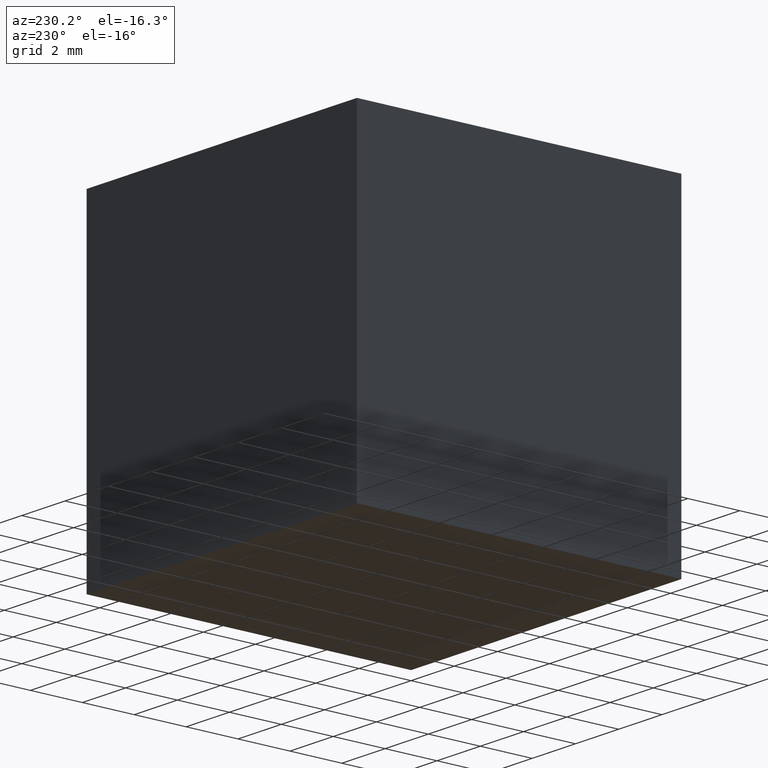
[diagram: clean part render]
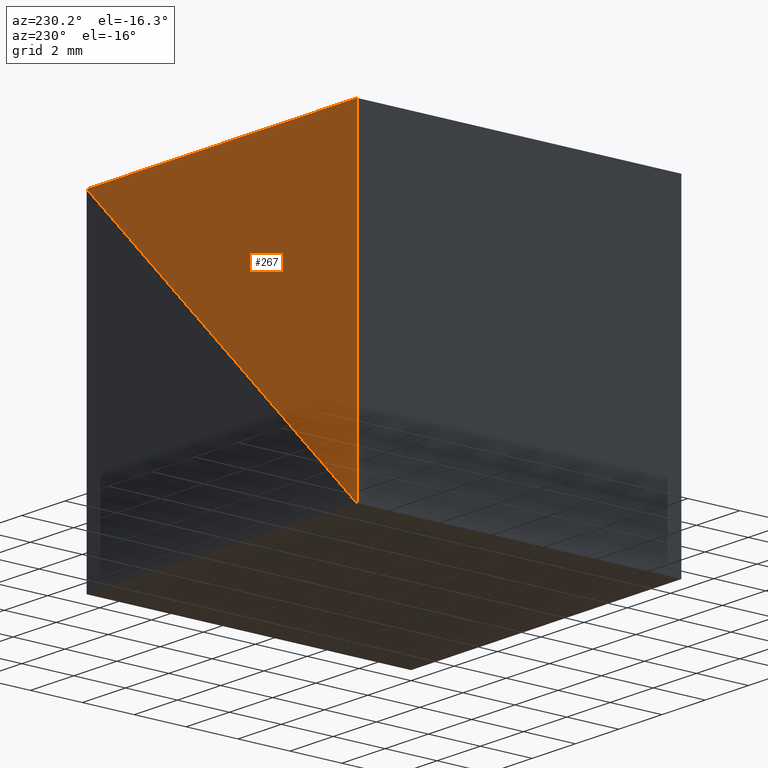
[diagram: same view with one face highlighted and labeled with its STEP entity id]
A machine part, auxiliary view. The second image highlights one B-rep face of the part: STEP entity #267.
In plain terms, the highlighted planar face has unit normal (0, 1, 0).
Its self-contained STEP definition (entity closure, byte-faithful):
#13 = VERTEX_POINT ( 'NONE', #244 ) ;
#28 = EDGE_CURVE ( 'NONE', #97, #13, #141, .T. ) ;
#59 = VECTOR ( 'NONE', #129, 1000.000000000000000 ) ;
#70 = VERTEX_POINT ( 'NONE', #243 ) ;
#76 = EDGE_LOOP ( 'NONE', ( #108, #113, #104 ) ) ;
#84 = CARTESIAN_POINT ( 'NONE',  ( -12.50000000000000000, 12.50000000000000000, -12.49999999999999800 ) ) ;
#86 = FACE_OUTER_BOUND ( 'NONE', #76, .T. ) ;
#89 = PLANE ( 'NONE',  #145 ) ;
#94 = CARTESIAN_POINT ( 'NONE',  ( -12.50000000000000000, 12.50000000000000000, -12.49999999999999800 ) ) ;
#95 = LINE ( 'NONE', #94, #147 ) ;
#97 = VERTEX_POINT ( 'NONE', #84 ) ;
#104 = ORIENTED_EDGE ( 'NONE', *, *, #293, .F. ) ;
#108 = ORIENTED_EDGE ( 'NONE', *, *, #28, .F. ) ;
#113 = ORIENTED_EDGE ( 'NONE', *, *, #206, .F. ) ;
#129 = DIRECTION ( 'NONE',  ( 0.7071067811865475700, 0.0000000000000000000, 0.7071067811865474600 ) ) ;
#138 = LINE ( 'NONE', #262, #146 ) ;
#141 = LINE ( 'NONE', #298, #59 ) ;
#143 = DIRECTION ( 'NONE',  ( -0.0000000000000000000, -0.0000000000000000000, -1.000000000000000000 ) ) ;
#145 = AXIS2_PLACEMENT_3D ( 'NONE', #216, #181, #155 ) ;
#146 = VECTOR ( 'NONE', #149, 1000.000000000000000 ) ;
#147 = VECTOR ( 'NONE', #143, 1000.000000000000000 ) ;
#149 = DIRECTION ( 'NONE',  ( -1.000000000000000000, -0.0000000000000000000, -0.0000000000000000000 ) ) ;
#155 = DIRECTION ( 'NONE',  ( 0.0000000000000000000, -0.0000000000000000000, 1.000000000000000000 ) ) ;
#181 = DIRECTION ( 'NONE',  ( 0.0000000000000000000, 1.000000000000000000, 0.0000000000000000000 ) ) ;
#206 = EDGE_CURVE ( 'NONE', #70, #97, #95, .T. ) ;
#216 = CARTESIAN_POINT ( 'NONE',  ( 0.0000000000000000000, 12.50000000000000000, 0.0000000000000000000 ) ) ;
#243 = CARTESIAN_POINT ( 'NONE',  ( -12.50000000000000000, 12.50000000000000000, 0.0000000000000000000 ) ) ;
#244 = CARTESIAN_POINT ( 'NONE',  ( 0.0000000000000000000, 12.50000000000000000, 0.0000000000000000000 ) ) ;
#262 = CARTESIAN_POINT ( 'NONE',  ( -12.50000000000000000, 12.50000000000000000, 0.0000000000000000000 ) ) ;
#267 = ADVANCED_FACE ( 'NONE', ( #86 ), #89, .T. ) ;
#293 = EDGE_CURVE ( 'NONE', #13, #70, #138, .T. ) ;
#298 = CARTESIAN_POINT ( 'NONE',  ( 0.0000000000000000000, 12.50000000000000000, 0.0000000000000000000 ) ) ;